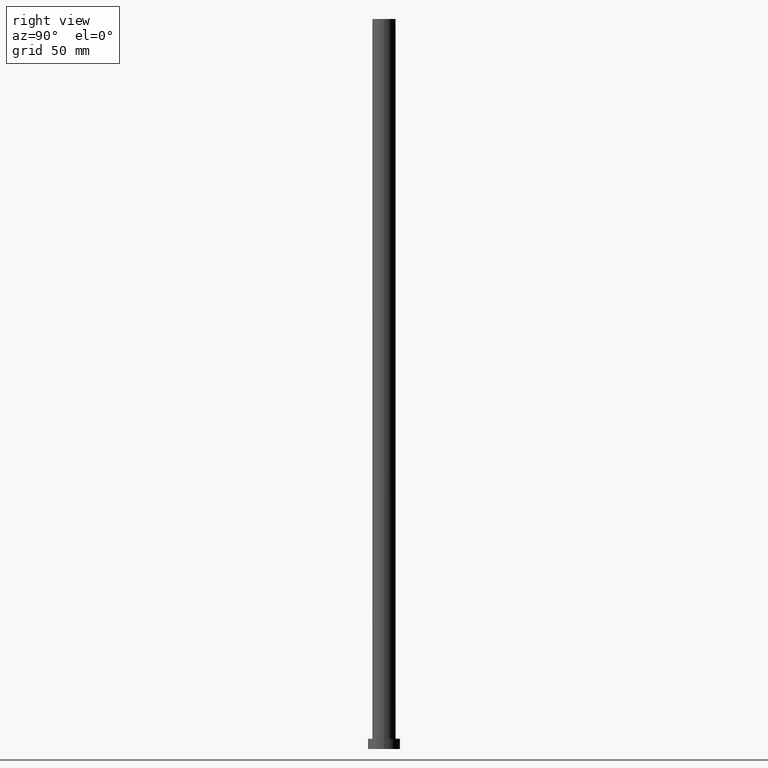
[diagram: clean part render]
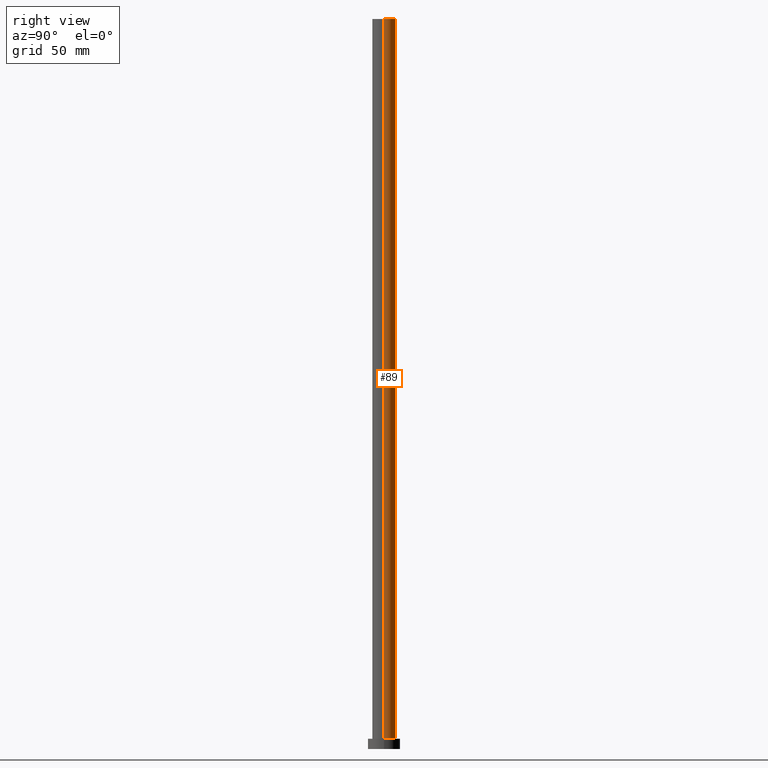
[diagram: same view with one face highlighted and labeled with its STEP entity id]
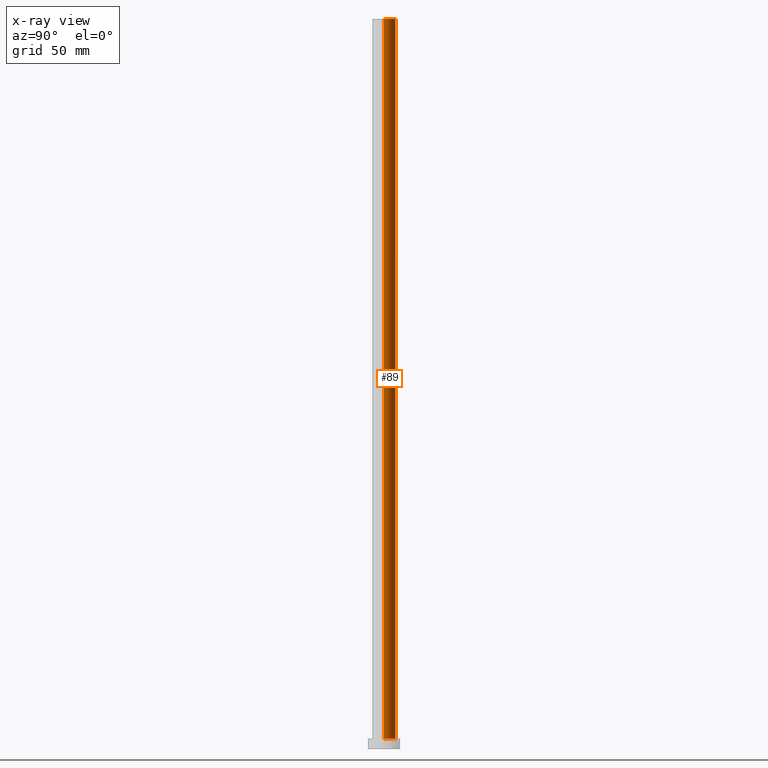
[diagram: x-ray of the same camera — body ghosted, the highlighted face saturated]
A machine part, right view. The second image highlights one B-rep face of the part: STEP entity #89.
The next image is the same camera in x-ray: the body ghosted, the highlighted face saturated — about 0% of this face is hidden behind the body in this view.
In plain terms, the highlighted cylindrical surface (edge-blend (fillet) strip) has radius 8 mm, axis along (-0, -0, -1).
Its self-contained STEP definition (entity closure, byte-faithful):
#7 = CARTESIAN_POINT ( 'NONE',  ( 8.000000000000000000, 9.797174393178825657E-16, 7.000000000000000000 ) ) ;
#26 = CARTESIAN_POINT ( 'NONE',  ( 0.000000000000000000, 0.000000000000000000, 500.0000000000000000 ) ) ;
#37 = CIRCLE ( 'NONE', #195, 8.000000000000000000 ) ;
#43 = VERTEX_POINT ( 'NONE', #128 ) ;
#44 = CARTESIAN_POINT ( 'NONE',  ( -8.000000000000000000, 0.000000000000000000, 500.0000000000000000 ) ) ;
#49 = CARTESIAN_POINT ( 'NONE',  ( 0.000000000000000000, 0.000000000000000000, 7.000000000000000000 ) ) ;
#56 = EDGE_CURVE ( 'NONE', #144, #127, #37, .T. ) ;
#64 = DIRECTION ( 'NONE',  ( -0.000000000000000000, -0.000000000000000000, -1.000000000000000000 ) ) ;
#71 = EDGE_LOOP ( 'NONE', ( #242, #126, #203, #161 ) ) ;
#74 = VECTOR ( 'NONE', #107, 1000.000000000000000 ) ;
#77 = EDGE_CURVE ( 'NONE', #43, #127, #164, .T. ) ;
#86 = DIRECTION ( 'NONE',  ( -0.000000000000000000, -0.000000000000000000, -1.000000000000000000 ) ) ;
#89 = ADVANCED_FACE ( 'NONE', ( #241 ), #184, .T. ) ;
#107 = DIRECTION ( 'NONE',  ( -0.000000000000000000, -0.000000000000000000, -1.000000000000000000 ) ) ;
#126 = ORIENTED_EDGE ( 'NONE', *, *, #177, .T. ) ;
#127 = VERTEX_POINT ( 'NONE', #186 ) ;
#128 = CARTESIAN_POINT ( 'NONE',  ( -8.000000000000000000, 0.000000000000000000, 500.0000000000000000 ) ) ;
#131 = LINE ( 'NONE', #249, #74 ) ;
#135 = EDGE_CURVE ( 'NONE', #218, #43, #238, .T. ) ;
#144 = VERTEX_POINT ( 'NONE', #7 ) ;
#145 = DIRECTION ( 'NONE',  ( 0.000000000000000000, 0.000000000000000000, 1.000000000000000000 ) ) ;
#146 = DIRECTION ( 'NONE',  ( 1.000000000000000000, 0.000000000000000000, 0.000000000000000000 ) ) ;
#151 = DIRECTION ( 'NONE',  ( 1.000000000000000000, 0.000000000000000000, 0.000000000000000000 ) ) ;
#154 = CARTESIAN_POINT ( 'NONE',  ( 8.000000000000000000, 9.797174393178825657E-16, 500.0000000000000000 ) ) ;
#161 = ORIENTED_EDGE ( 'NONE', *, *, #77, .F. ) ;
#164 = LINE ( 'NONE', #44, #180 ) ;
#177 = EDGE_CURVE ( 'NONE', #218, #144, #131, .T. ) ;
#180 = VECTOR ( 'NONE', #86, 1000.000000000000000 ) ;
#184 = CYLINDRICAL_SURFACE ( 'NONE', #207, 8.000000000000000000 ) ;
#185 = CARTESIAN_POINT ( 'NONE',  ( 0.000000000000000000, 0.000000000000000000, 500.0000000000000000 ) ) ;
#186 = CARTESIAN_POINT ( 'NONE',  ( -8.000000000000000000, 0.000000000000000000, 7.000000000000000000 ) ) ;
#195 = AXIS2_PLACEMENT_3D ( 'NONE', #49, #208, #146 ) ;
#203 = ORIENTED_EDGE ( 'NONE', *, *, #56, .T. ) ;
#207 = AXIS2_PLACEMENT_3D ( 'NONE', #26, #64, #222 ) ;
#208 = DIRECTION ( 'NONE',  ( 0.000000000000000000, 0.000000000000000000, 1.000000000000000000 ) ) ;
#209 = AXIS2_PLACEMENT_3D ( 'NONE', #185, #145, #151 ) ;
#218 = VERTEX_POINT ( 'NONE', #154 ) ;
#222 = DIRECTION ( 'NONE',  ( -1.000000000000000000, 0.000000000000000000, 0.000000000000000000 ) ) ;
#238 = CIRCLE ( 'NONE', #209, 8.000000000000000000 ) ;
#241 = FACE_OUTER_BOUND ( 'NONE', #71, .T. ) ;
#242 = ORIENTED_EDGE ( 'NONE', *, *, #135, .F. ) ;
#249 = CARTESIAN_POINT ( 'NONE',  ( 8.000000000000000000, 9.797174393178825657E-16, 500.0000000000000000 ) ) ;